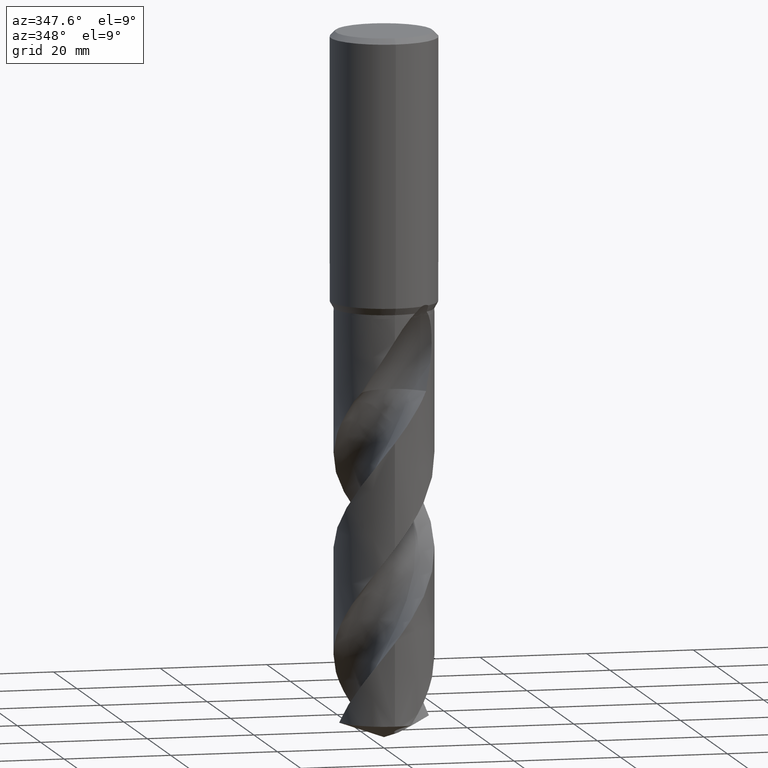
[diagram: clean part render]
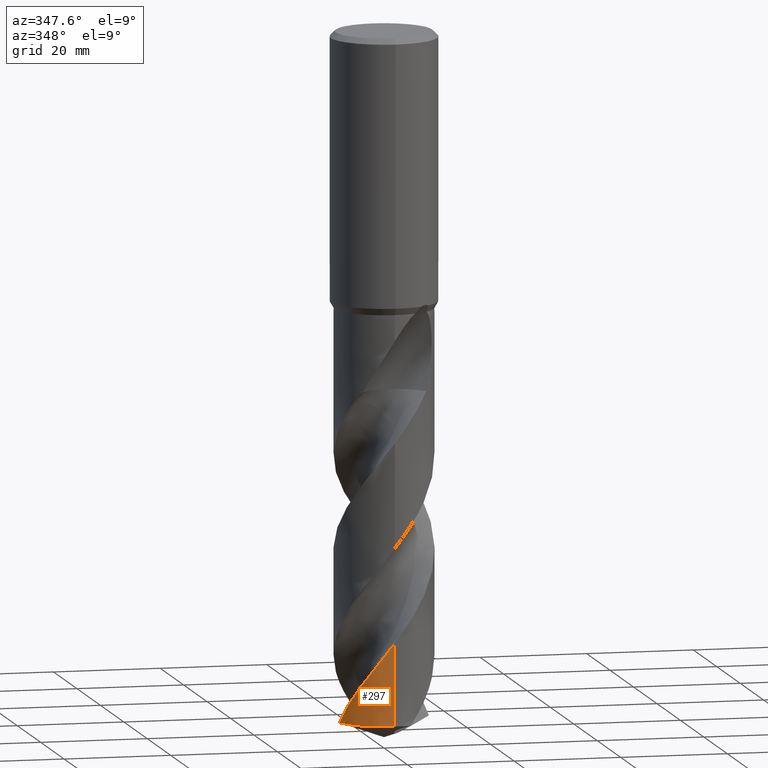
[diagram: same view with one face highlighted and labeled with its STEP entity id]
A machine part, auxiliary view. The second image highlights one B-rep face of the part: STEP entity #297.
In plain terms, the highlighted conical surface has half-angle 0 deg.
Its self-contained STEP definition (entity closure, byte-faithful):
#297=ADVANCED_FACE('',(#829),#830,.T.);
#399=VERTEX_POINT('',#941);
#495=VERTEX_POINT('',#1046);
#651=EDGE_CURVE('',#711,#495,#1215,.T.);
#655=EDGE_CURVE('',#711,#399,#1219,.T.);
#711=VERTEX_POINT('',#1282);
#719=EDGE_CURVE('',#495,#399,#1290,.T.);
#829=FACE_OUTER_BOUND('',#1413,.T.);
#830=CONICAL_SURFACE('',#1414,9.24995,1.32216937002102E-006);
#941=CARTESIAN_POINT('',(-8.93896769583771,-2.37851981971349,-127.633275333038));
#1046=CARTESIAN_POINT('',(2.2770789422899E-014,-9.24997954540193,-112.162792851247));
#1215=LINE('',#5095,#5096);
#1219=CIRCLE('',#5111,9.25);
#1282=CARTESIAN_POINT('',(1.13266036567483E-015,-9.25,-127.633275333038));
#1290=B_SPLINE_CURVE_WITH_KNOTS('',3,(#5222,#5223,#5224,#5225,#5226,#5227,#5228,#5229,#5230,#5231,#5232,#5233,#5234,#5235,#5236,#5237,#5238,#5239,#5240,#5241,#5242,#5243,#5244,#5245,#5246,#5247,#5248,#5249,#5250,#5251,#5252,#5253,#5254,#5255,#5256,#5257,#5258,#5259,#5260,#5261,#5262,#5263,#5264,#5265,#5266,#5267,#5268,#5269,#5270,#5271,#5272,#5273,#5274,#5275,#5276,#5277,#5278,#5279,#5280,#5281,#5282,#5283,#5284,#5285,#5286,#5287,#5288,#5289,#5290,#5291,#5292,#5293,#5294,#5295,#5296,#5297,#5298,#5299,#5300,#5301,#5302,#5303,#5304,#5305,#5306,#5307,#5308,#5309,#5310,#5311,#5312,#5313,#5314,#5315),.UNSPECIFIED.,.F.,.F.,(4,2,2,2,2,2,2,2,2,2,2,2,2,2,2,2,2,2,2,2,2,2,2,2,2,2,2,2,2,2,2,2,2,2,2,2,2,2,2,2,2,2,2,2,2,2,4),(0.0,0.273024573325319,0.331031660480133,1.48260282620128,1.86092443381457,2.09703163262353,2.31474051019009,3.07610169954021,3.53252724334295,3.67326232864916,3.78992010569704,3.89436488412622,4.59234760112939,5.53162046500345,6.69469627013125,8.46839284776554,10.7718621186468,13.7454739412761,16.0435593813326,18.332660735666,19.4836213967463,20.6199767402823,25.1420160723224,25.279823590423,29.228696468548,31.5076831136799,33.7994967204787,36.094884781602,38.3798715344653,39.5307567968296,41.7976590504668,44.092431875146,46.3797530892246,48.6681853905918,49.8180733844856,50.9507982216901,53.231780196123,54.3830835146556,56.6601777559623,58.9516598480579,61.1153989484858,64.8795837044144,66.298582168343,68.7966458342883,72.5553362983337,74.43494939238,76.3168242458896),.UNSPECIFIED.);
#1413=EDGE_LOOP('',(#5653,#5654,#5655));
#1414=AXIS2_PLACEMENT_3D('',#5656,#5657,#5658);
#5095=CARTESIAN_POINT('',(1.13265424264306E-015,-9.24995,-89.8166376665188));
#5096=VECTOR('',#6081,1.0);
#5111=AXIS2_PLACEMENT_3D('',#6082,#6083,#6084);
#5222=CARTESIAN_POINT('',(-6.42940778141164,6.65009081206351,-65.991));
#5223=CARTESIAN_POINT('',(-6.39076682374915,6.68744960596376,-66.0644417303587));
#5224=CARTESIAN_POINT('',(-6.35173182848369,6.72453847151478,-66.1378575414149));
#5225=CARTESIAN_POINT('',(-6.30384815542652,6.76924133073891,-66.2267659724877));
#5226=CARTESIAN_POINT('',(-6.29543795286314,6.77706363187907,-66.2423395512876));
#5227=CARTESIAN_POINT('',(-6.11963401930626,6.93996779470006,-66.5669778316802));
#5228=CARTESIAN_POINT('',(-5.94780970094968,7.08807918909441,-66.8664568123334));
#5229=CARTESIAN_POINT('',(-5.70123359744592,7.28443784171765,-67.2694443085107));
#5230=CARTESIAN_POINT('',(-5.63945599189042,7.33237732855126,-67.3684579483327));
#5231=CARTESIAN_POINT('',(-5.53746830149621,7.40944583961136,-67.5291905710438));
#5232=CARTESIAN_POINT('',(-5.49797290486201,7.43880093784752,-67.5907933782597));
#5233=CARTESIAN_POINT('',(-5.4214131983975,7.49475701512116,-67.7091489589829));
#5234=CARTESIAN_POINT('',(-5.38444938305475,7.52135759054391,-67.7658282603939));
#5235=CARTESIAN_POINT('',(-5.21711055819473,7.6399104723025,-68.0207122745871));
#5236=CARTESIAN_POINT('',(-5.08541143181816,7.72826693449402,-68.217317179964));
#5237=CARTESIAN_POINT('',(-4.86553149072503,7.86747556627339,-68.5436731558209));
#5238=CARTESIAN_POINT('',(-4.78254680307499,7.91818833678672,-68.6661917537412));
#5239=CARTESIAN_POINT('',(-4.67326935750075,7.98263797703982,-68.8268196985115));
#5240=CARTESIAN_POINT('',(-4.64746617391319,7.99768787361878,-68.8646967455053));
#5241=CARTESIAN_POINT('',(-4.60018581338948,8.0249589818832,-68.9340121612342));
#5242=CARTESIAN_POINT('',(-4.57872430192064,8.03722332705787,-68.9654426638902));
#5243=CARTESIAN_POINT('',(-4.5379871591639,8.06028709130571,-69.0250426257131));
#5244=CARTESIAN_POINT('',(-4.51872854379366,8.07109943099653,-69.053194295678));
#5245=CARTESIAN_POINT('',(-4.37066330029324,8.15353321145486,-69.2694141578912));
#5246=CARTESIAN_POINT('',(-4.24039261768538,8.22202679083418,-69.4583582970142));
#5247=CARTESIAN_POINT('',(-3.93168933334338,8.37508093871271,-69.9009736207203));
#5248=CARTESIAN_POINT('',(-3.75146748039037,8.45735773140484,-70.1551238755245));
#5249=CARTESIAN_POINT('',(-3.34202487570838,8.62857222034927,-70.7231614950518));
#5250=CARTESIAN_POINT('',(-3.11189620255192,8.71422842809911,-71.0357529443481));
#5251=CARTESIAN_POINT('',(-2.52136481174829,8.90756386262059,-71.8263692020904));
#5252=CARTESIAN_POINT('',(-2.15821684140922,9.00242499609434,-72.3038222105851));
#5253=CARTESIAN_POINT('',(-1.31316562654222,9.16916464737311,-73.4026524328951));
#5254=CARTESIAN_POINT('',(-0.829247172160178,9.22550468510353,-74.022928381656));
#5255=CARTESIAN_POINT('',(0.283853854844482,9.26685533224062,-75.4458216639074));
#5256=CARTESIAN_POINT('',(0.912128501225835,9.22626903357855,-76.2442519475536));
#5257=CARTESIAN_POINT('',(2.01063744766463,9.04181390692731,-77.6646636005489));
#5258=CARTESIAN_POINT('',(2.48219454774029,8.92386347757099,-78.2828522311669));
#5259=CARTESIAN_POINT('',(3.40024009957898,8.61586851193416,-79.5196007142869));
#5260=CARTESIAN_POINT('',(3.84579308984077,8.42645033028562,-80.1360631531397));
#5261=CARTESIAN_POINT('',(4.49026534916978,8.09061168983901,-81.0631449411642));
#5262=CARTESIAN_POINT('',(4.70141361089567,7.96977041922687,-81.3731105428167));
#5263=CARTESIAN_POINT('',(5.11115025465124,7.71331294956832,-81.9893919721242));
#5264=CARTESIAN_POINT('',(5.30960717301741,7.57806559758225,-82.295287056196));
#5265=CARTESIAN_POINT('',(6.27035079304902,6.86706032975161,-83.8204916343063));
#5266=CARTESIAN_POINT('',(6.9457964899865,6.18309238581551,-85.0332412338256));
#5267=CARTESIAN_POINT('',(7.52152208123144,5.38414732806103,-86.2890883078275));
#5268=CARTESIAN_POINT('',(7.53843497319658,5.36044176531706,-86.3262247343136));
#5269=CARTESIAN_POINT('',(8.03670166751081,4.65503551796381,-87.4277872391231));
#5270=CARTESIAN_POINT('',(8.42385245831636,3.91115249336595,-88.4898325910443));
#5271=CARTESIAN_POINT('',(8.86870555264452,2.67203106805032,-90.1687156426353));
#5272=CARTESIAN_POINT('',(8.99575308280206,2.20675453481589,-90.7819663857671));
#5273=CARTESIAN_POINT('',(9.17673624541269,1.25837082009715,-92.0148031334119));
#5274=CARTESIAN_POINT('',(9.23004372577924,0.77628807052946,-92.632113219702));
#5275=CARTESIAN_POINT('',(9.26066375966695,-0.192872920954051,-93.8688666732506));
#5276=CARTESIAN_POINT('',(9.23780282242525,-0.678129187709619,-94.4860762173523));
#5277=CARTESIAN_POINT('',(9.116528628522,-1.63819098064465,-95.7214928064558));
#5278=CARTESIAN_POINT('',(9.01861307908371,-2.11177799601385,-96.3372587227627));
#5279=CARTESIAN_POINT('',(8.81639941012738,-2.80927603097655,-97.2637767807109));
#5280=CARTESIAN_POINT('',(8.73946475807568,-3.04018637067857,-97.5739242980085));
#5281=CARTESIAN_POINT('',(8.48417211425171,-3.71622658728708,-98.4953715169685));
#5282=CARTESIAN_POINT('',(8.2803214694808,-4.15059237259454,-99.1057765727946));
#5283=CARTESIAN_POINT('',(7.80452208407905,-4.98861500988667,-100.336284872512));
#5284=CARTESIAN_POINT('',(7.53230623612183,-5.39087973689076,-100.954316550476));
#5285=CARTESIAN_POINT('',(6.92801846858615,-6.14803104686817,-102.189756864618));
#5286=CARTESIAN_POINT('',(6.59730788390237,-6.50161120879148,-102.805080688877));
#5287=CARTESIAN_POINT('',(5.88374266713913,-7.15382757515842,-104.039425161588));
#5288=CARTESIAN_POINT('',(5.50173627414609,-7.45163554750891,-104.656044436614));
#5289=CARTESIAN_POINT('',(4.89523904354451,-7.85224082355053,-105.583248204651));
#5290=CARTESIAN_POINT('',(4.6871792364519,-7.97818520693949,-105.893131449424));
#5291=CARTESIAN_POINT('',(4.26474077366904,-8.211658657151,-106.508579594122));
#5292=CARTESIAN_POINT('',(4.05076517918836,-8.31929050481728,-106.813785722438));
#5293=CARTESIAN_POINT('',(3.39419556998277,-8.61822560771891,-107.734640826632));
#5294=CARTESIAN_POINT('',(2.94047449877375,-8.78340021568714,-108.349570289791));
#5295=CARTESIAN_POINT('',(2.24141788350625,-8.9776012606858,-109.275361281764));
#5296=CARTESIAN_POINT('',(2.00440589831178,-9.03347607934585,-109.585708277628));
#5297=CARTESIAN_POINT('',(1.29273727198918,-9.17184740024135,-110.510220973412));
#5298=CARTESIAN_POINT('',(0.813792761672079,-9.22666503126962,-111.123203244201));
#5299=CARTESIAN_POINT('',(-0.15093172221944,-9.26141408563785,-112.355829959582));
#5300=CARTESIAN_POINT('',(-0.635610936220649,-9.24082910516064,-112.973222148824));
#5301=CARTESIAN_POINT('',(-1.57079713107255,-9.12710810920409,-114.174757675277));
#5302=CARTESIAN_POINT('',(-2.02011327635276,-9.03827679548523,-114.756832086161));
#5303=CARTESIAN_POINT('',(-3.22780144290249,-8.70496474855977,-116.356192965999));
#5304=CARTESIAN_POINT('',(-3.96450450687997,-8.39516420292773,-117.368165252188));
#5305=CARTESIAN_POINT('',(-4.91199391130991,-7.8437664307807,-118.766064571001));
#5306=CARTESIAN_POINT('',(-5.16378997682236,-7.68033306847218,-119.148509675854));
#5307=CARTESIAN_POINT('',(-5.83551451069891,-7.19637819863602,-120.205442313891));
#5308=CARTESIAN_POINT('',(-6.23682806378378,-6.85152731133503,-120.878603995492));
#5309=CARTESIAN_POINT('',(-7.16298134517163,-5.90643530196119,-122.566293206782));
#5310=CARTESIAN_POINT('',(-7.64364284089059,-5.2695331119229,-123.575808559681));
#5311=CARTESIAN_POINT('',(-8.23350200661969,-4.23434070746305,-125.097473029761));
#5312=CARTESIAN_POINT('',(-8.40778732051437,-3.87679979638407,-125.604107960111));
#5313=CARTESIAN_POINT('',(-8.70956200673628,-3.14076412135306,-126.618750219447));
#5314=CARTESIAN_POINT('',(-8.83662254989014,-2.76315136146343,-127.125664750556));
#5315=CARTESIAN_POINT('',(-8.93896769583763,-2.37851981971353,-127.633275333038));
#5653=ORIENTED_EDGE('',*,*,#651,.T.);
#5654=ORIENTED_EDGE('',*,*,#719,.T.);
#5655=ORIENTED_EDGE('',*,*,#655,.F.);
#5656=CARTESIAN_POINT('',(0.0,0.0,-89.8166376665188));
#5657=DIRECTION('',(0.0,-0.0,-1.0));
#5658=DIRECTION('',(0.0,1.0,0.0));
#6081=DIRECTION('',(-1.6191370113566E-022,1.32216937002063E-006,0.999999999999126));
#6082=CARTESIAN_POINT('',(0.0,0.0,-127.633275333038));
#6083=DIRECTION('',(0.0,0.0,-1.0));
#6084=DIRECTION('',(0.0,1.0,0.0));